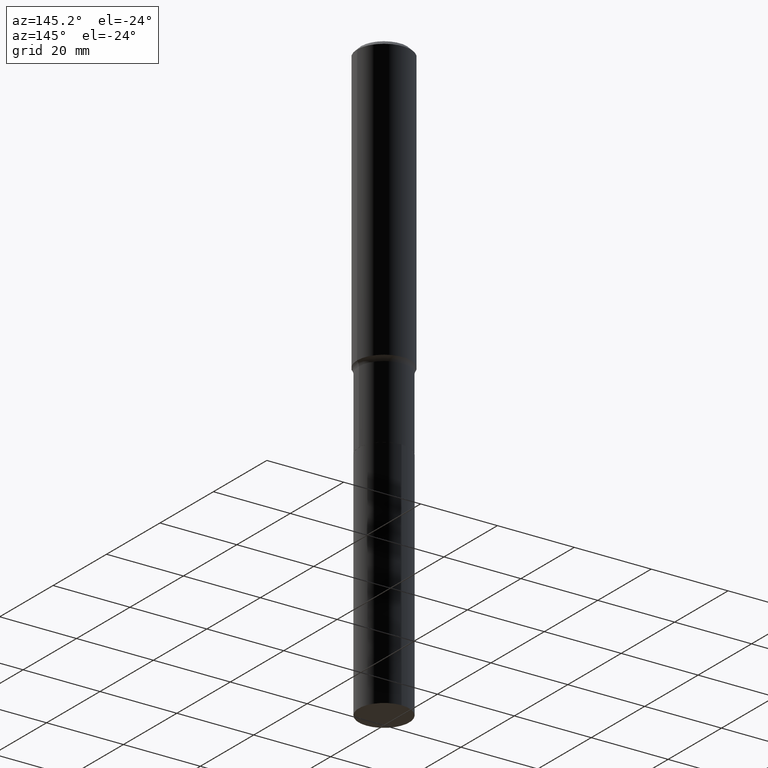
[diagram: clean part render]
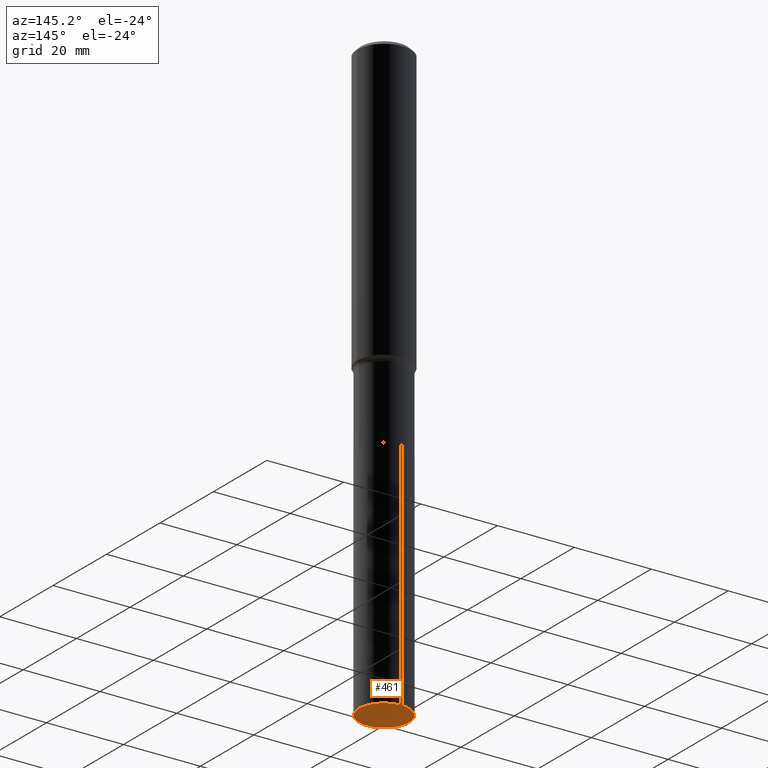
[diagram: same view with one face highlighted and labeled with its STEP entity id]
A machine part, auxiliary view. The second image highlights one B-rep face of the part: STEP entity #461.
In plain terms, the highlighted planar face has unit normal (-0, 0, 1).
Its self-contained STEP definition (entity closure, byte-faithful):
#16 = VERTEX_POINT ( 'NONE', #303 ) ;
#20 = CARTESIAN_POINT ( 'NONE',  ( 5.104790784534641535E-28, 3.042618069843878036E-14, -6.102399999999998492 ) ) ;
#33 = DIRECTION ( 'NONE',  ( -2.445055770018105252E-29, 3.492072830142893324E-15, 1.000000000000000000 ) ) ;
#34 = DIRECTION ( 'NONE',  ( -2.445055770018105252E-29, 3.492072830142893324E-15, 1.000000000000000000 ) ) ;
#61 = CIRCLE ( 'NONE', #267, 0.2577999999999999736 ) ;
#126 = PLANE ( 'NONE',  #402 ) ;
#136 = DIRECTION ( 'NONE',  ( -6.982962677686265922E-15, -1.000000000000000000, 4.238709066973255853E-15 ) ) ;
#137 = AXIS2_PLACEMENT_3D ( 'NONE', #291, #34, #256 ) ;
#164 = CARTESIAN_POINT ( 'NONE',  ( 1.831779172789657604E-15, 0.2577999999999786573, -6.102399999999998492 ) ) ;
#229 = EDGE_CURVE ( 'NONE', #16, #233, #61, .T. ) ;
#233 = VERTEX_POINT ( 'NONE', #164 ) ;
#251 = ORIENTED_EDGE ( 'NONE', *, *, #379, .F. ) ;
#256 = DIRECTION ( 'NONE',  ( -6.982962677686265922E-15, -1.000000000000000000, 4.238709066973255853E-15 ) ) ;
#267 = AXIS2_PLACEMENT_3D ( 'NONE', #315, #33, #136 ) ;
#275 = CIRCLE ( 'NONE', #137, 0.2577999999999999736 ) ;
#291 = CARTESIAN_POINT ( 'NONE',  ( 1.492223714302713032E-28, -2.130783589276709952E-14, -6.102399999999997604 ) ) ;
#302 = ORIENTED_EDGE ( 'NONE', *, *, #229, .F. ) ;
#303 = CARTESIAN_POINT ( 'NONE',  ( -1.800207778307370072E-15, -0.2578000000000212899, -6.102399999999996716 ) ) ;
#304 = DIRECTION ( 'NONE',  ( -6.982962677686265922E-15, -1.000000000000000000, 3.492072830142893324E-15 ) ) ;
#315 = CARTESIAN_POINT ( 'NONE',  ( 1.492223714302713032E-28, -2.130783589276709952E-14, -6.102399999999997604 ) ) ;
#335 = EDGE_LOOP ( 'NONE', ( #302, #251 ) ) ;
#379 = EDGE_CURVE ( 'NONE', #233, #16, #275, .T. ) ;
#382 = DIRECTION ( 'NONE',  ( -2.445055770018104692E-29, 3.492072830142893324E-15, 1.000000000000000000 ) ) ;
#402 = AXIS2_PLACEMENT_3D ( 'NONE', #20, #382, #304 ) ;
#412 = FACE_OUTER_BOUND ( 'NONE', #335, .T. ) ;
#461 = ADVANCED_FACE ( 'NONE', ( #412 ), #126, .F. ) ;